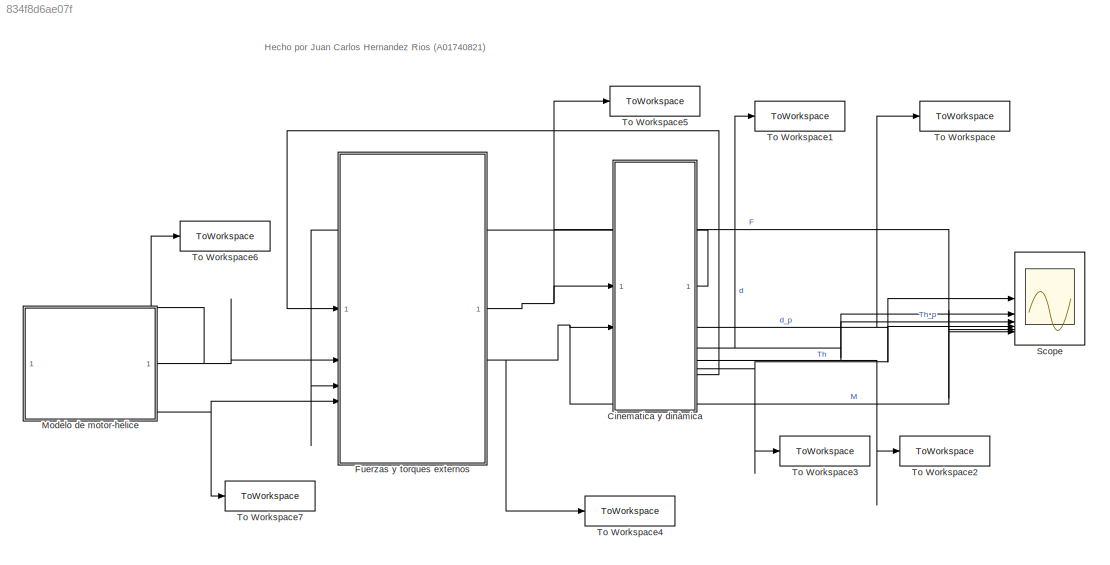
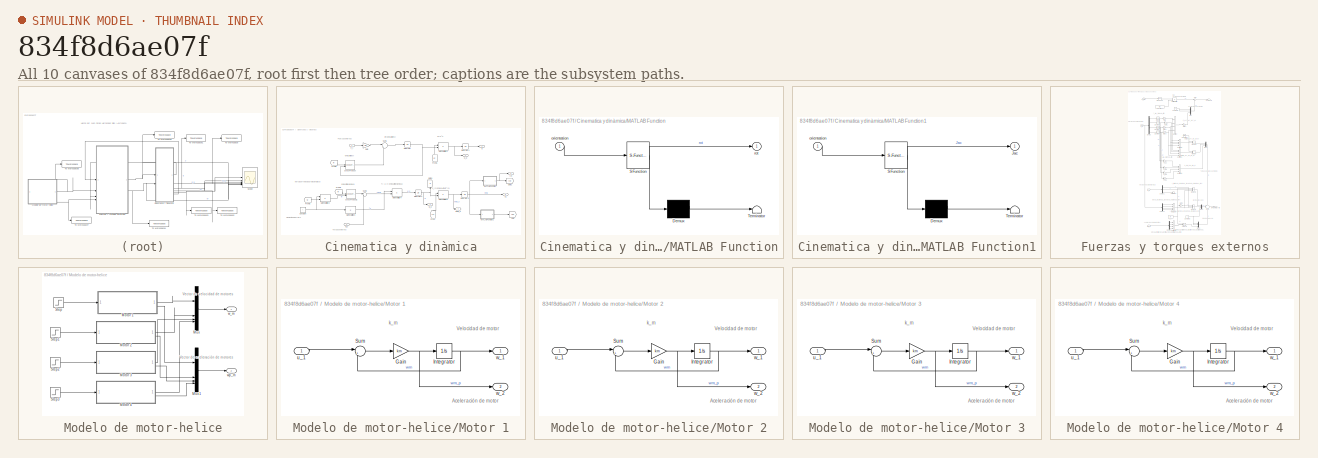
[diagram: thumbnail index - all 10 canvases of the model, root first then tree order]
MODEL slx_834f8d6ae07f
KIND model
CONFIG AbsTol = 1e-9
CONFIG EnableMultiTasking = off
CONFIG FixedStep = auto
CONFIG MaxStep = auto
CONFIG MinStep = auto
CONFIG RelTol = 1e-6
CONFIG SampleTimeConstraint = Unconstrained
CONFIG SolverName = VariableStepAuto
CONFIG StartTime = 0.0
CONFIG StopTime = t
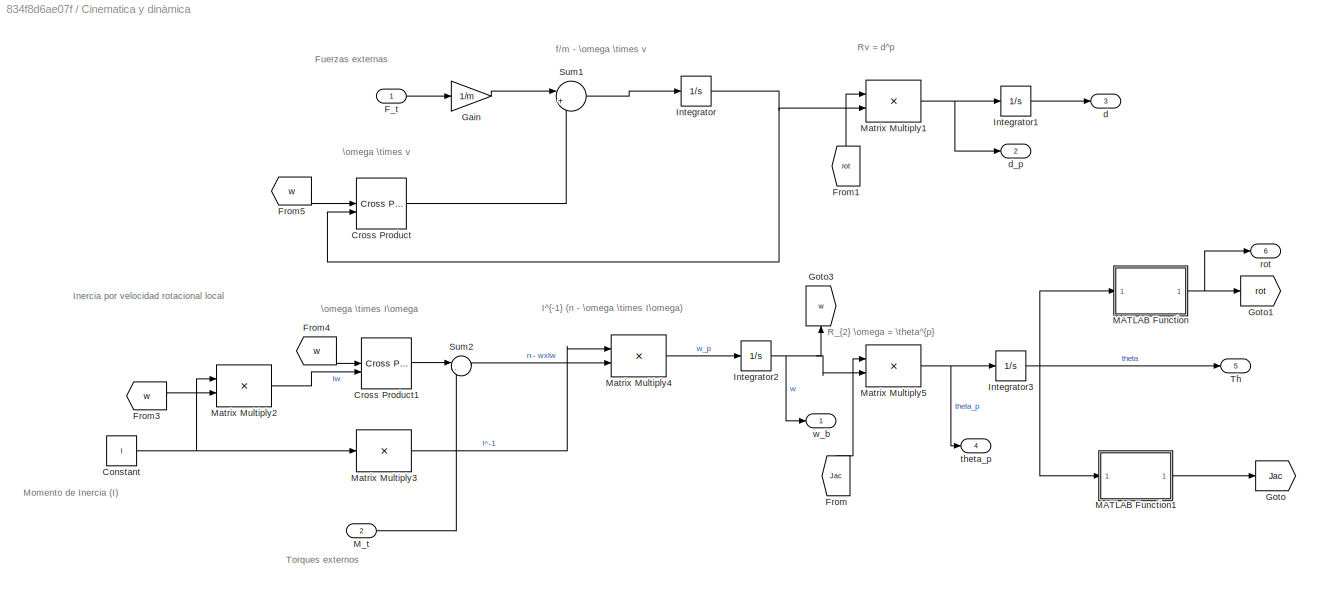
BLOCK [SubSystem] Cinematica y dinàmica
BLOCK [Constant] Cinematica y dinàmica/Constant
  Value = I
  VectorParams1D = off
BLOCK [Reference] Cinematica y dinàmica/Cross Product  REF=matrix_library/Cross Product
  LibrarySourceBlock = simulink/Matrix\nOperations/Cross Product
  SourceBlock = matrix_library/Cross Product
  SourceType = CrossProduct
BLOCK [Reference] Cinematica y dinàmica/Cross Product1  REF=matrix_library/Cross Product
  LibrarySourceBlock = simulink/Matrix\nOperations/Cross Product
  SourceBlock = matrix_library/Cross Product
  SourceType = CrossProduct
BLOCK [Inport] Cinematica y dinàmica/F_t
BLOCK [From] Cinematica y dinàmica/From
  GotoTag = Jac
  NameLocation = right
BLOCK [From] Cinematica y dinàmica/From1
  GotoTag = rot
  NameLocation = right
BLOCK [From] Cinematica y dinàmica/From3
  GotoTag = w
BLOCK [From] Cinematica y dinàmica/From4
  GotoTag = w
BLOCK [From] Cinematica y dinàmica/From5
  GotoTag = w
BLOCK [Gain] Cinematica y dinàmica/Gain
  Gain = 1/m
BLOCK [Goto] Cinematica y dinàmica/Goto
  GotoTag = Jac
BLOCK [Goto] Cinematica y dinàmica/Goto1
  GotoTag = rot
BLOCK [Goto] Cinematica y dinàmica/Goto3
  GotoTag = w
  NameLocation = right
BLOCK [Integrator] Cinematica y dinàmica/Integrator
  InitialCondition = v0
BLOCK [Integrator] Cinematica y dinàmica/Integrator1
  InitialCondition = d0
BLOCK [Integrator] Cinematica y dinàmica/Integrator2
  InitialCondition = w0
BLOCK [Integrator] Cinematica y dinàmica/Integrator3
  InitialCondition = theta0
BLOCK [SubSystem] Cinematica y dinàmica/MATLAB Function
  ErrorFcn = Stateflow.Translate.translate
  LibrarySourceBlock = simulink/User-Defined\nFunctions/MATLAB Function
  PermitHierarchicalResolution = ExplicitOnly
  SFBlockType = MATLAB Function
  TreatAsAtomicUnit = on
BLOCK [Demux] Cinematica y dinàmica/MATLAB Function/ Demux 
  Outputs = 1
BLOCK [S-Function] Cinematica y dinàmica/MATLAB Function/ SFunction 
  EnableBusSupport = on
  FunctionName = sf_sfun
  PortCounts = [1 2]
  SFcnIsStateOwnerBlock = off
  SFunctionDeploymentMode = off
  Tag = Stateflow S-Function 2
BLOCK [Terminator] Cinematica y dinàmica/MATLAB Function/ Terminator 
BLOCK [Inport] Cinematica y dinàmica/MATLAB Function/orientation
BLOCK [Outport] Cinematica y dinàmica/MATLAB Function/rot
BLOCK [SubSystem] Cinematica y dinàmica/MATLAB Function1
  ErrorFcn = Stateflow.Translate.translate
  LibrarySourceBlock = simulink/User-Defined\nFunctions/MATLAB Function
  PermitHierarchicalResolution = ExplicitOnly
  SFBlockType = MATLAB Function
  TreatAsAtomicUnit = on
BLOCK [Demux] Cinematica y dinàmica/MATLAB Function1/ Demux 
  Outputs = 1
BLOCK [S-Function] Cinematica y dinàmica/MATLAB Function1/ SFunction 
  EnableBusSupport = on
  FunctionName = sf_sfun
  PortCounts = [1 2]
  SFcnIsStateOwnerBlock = off
  SFunctionDeploymentMode = off
  Tag = Stateflow S-Function 1
BLOCK [Terminator] Cinematica y dinàmica/MATLAB Function1/ Terminator 
BLOCK [Outport] Cinematica y dinàmica/MATLAB Function1/Jac
BLOCK [Inport] Cinematica y dinàmica/MATLAB Function1/orientation
BLOCK [Inport] Cinematica y dinàmica/M_t
  Port = 2
BLOCK [Product] Cinematica y dinàmica/Matrix Multiply1
  Multiplication = Matrix(*)
BLOCK [Product] Cinematica y dinàmica/Matrix Multiply2
  Multiplication = Matrix(*)
BLOCK [Product] Cinematica y dinàmica/Matrix Multiply3
  Inputs = /
  Multiplication = Matrix(*)
BLOCK [Product] Cinematica y dinàmica/Matrix Multiply4
  Multiplication = Matrix(*)
BLOCK [Product] Cinematica y dinàmica/Matrix Multiply5
  Multiplication = Matrix(*)
BLOCK [Sum] Cinematica y dinàmica/Sum1
  Inputs = |+-
BLOCK [Sum] Cinematica y dinàmica/Sum2
  Inputs = |-+
BLOCK [Outport] Cinematica y dinàmica/Th
  Port = 5
BLOCK [Outport] Cinematica y dinàmica/d
  Port = 3
BLOCK [Outport] Cinematica y dinàmica/d_p
  Port = 2
BLOCK [Outport] Cinematica y dinàmica/rot
  Port = 6
BLOCK [Outport] Cinematica y dinàmica/theta_p
  Port = 4
BLOCK [Outport] Cinematica y dinàmica/w_b
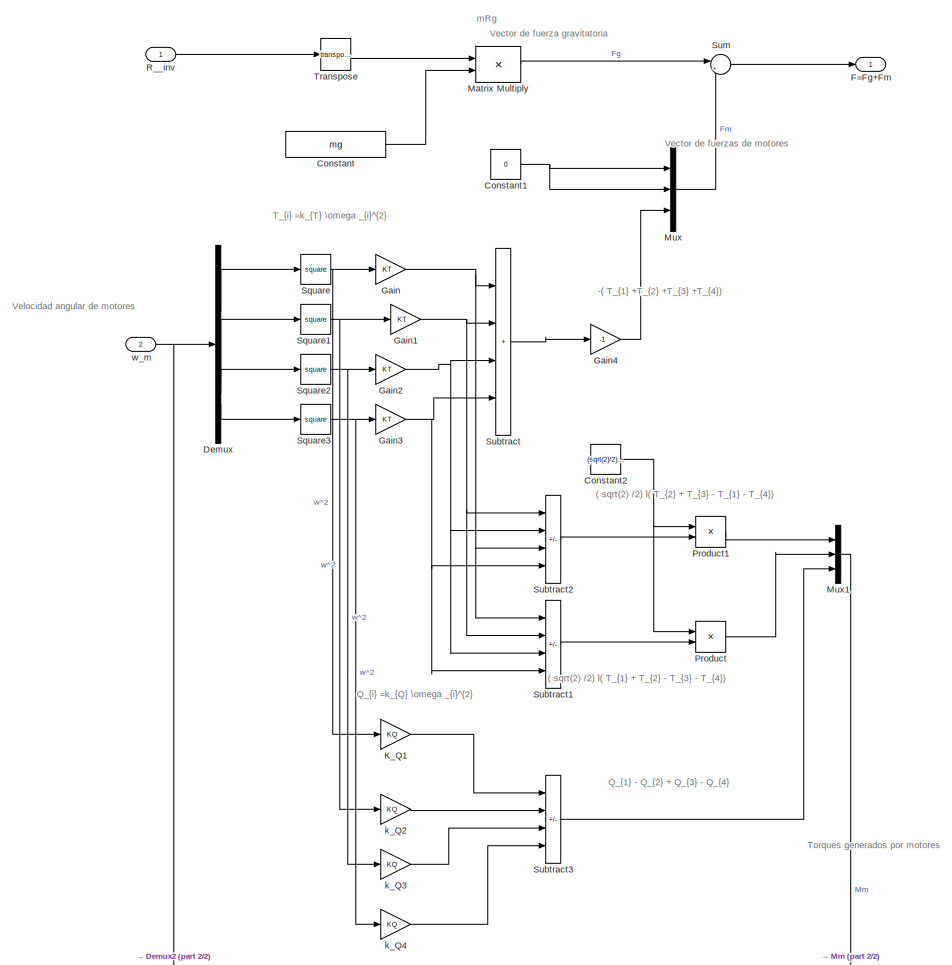
[diagram: Fuerzas y torques externos - part 1/2, full width, top band]
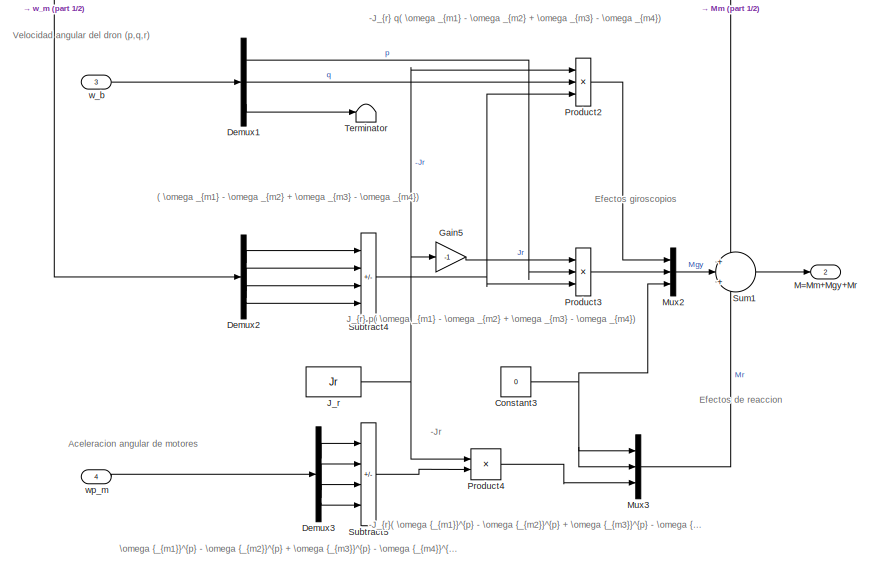
[diagram: Fuerzas y torques externos - part 2/2, full width, bottom band]
BLOCK [SubSystem] Fuerzas y torques externos
BLOCK [Constant] Fuerzas y torques externos/Constant
  Value = mg
BLOCK [Constant] Fuerzas y torques externos/Constant1
  Value = 0
BLOCK [Constant] Fuerzas y torques externos/Constant2
  Value = (sqrt(2)/2)*l
BLOCK [Constant] Fuerzas y torques externos/Constant3
  Value = 0
BLOCK [Demux] Fuerzas y torques externos/Demux
BLOCK [Demux] Fuerzas y torques externos/Demux1
  Outputs = 3
BLOCK [Demux] Fuerzas y torques externos/Demux2
BLOCK [Demux] Fuerzas y torques externos/Demux3
BLOCK [Outport] Fuerzas y torques externos/F=Fg+Fm
BLOCK [Gain] Fuerzas y torques externos/Gain
  Gain = KT
BLOCK [Gain] Fuerzas y torques externos/Gain1
  Gain = KT
BLOCK [Gain] Fuerzas y torques externos/Gain2
  Gain = KT
BLOCK [Gain] Fuerzas y torques externos/Gain3
  Gain = KT
BLOCK [Gain] Fuerzas y torques externos/Gain4
  Gain = -1
BLOCK [Gain] Fuerzas y torques externos/Gain5
  Gain = -1
BLOCK [Constant] Fuerzas y torques externos/J_r
  Value = Jr
BLOCK [Gain] Fuerzas y torques externos/K_Q1
  Gain = KQ
BLOCK [Outport] Fuerzas y torques externos/M=Mm+Mgy+Mr
  Port = 2
BLOCK [Product] Fuerzas y torques externos/Matrix Multiply
  Multiplication = Matrix(*)
BLOCK [Mux] Fuerzas y torques externos/Mux
  DisplayOption = bar
  Inputs = 3
BLOCK [Mux] Fuerzas y torques externos/Mux1
  DisplayOption = bar
  Inputs = 3
BLOCK [Mux] Fuerzas y torques externos/Mux2
  DisplayOption = bar
  Inputs = 3
BLOCK [Mux] Fuerzas y torques externos/Mux3
  DisplayOption = bar
  Inputs = 3
BLOCK [Product] Fuerzas y torques externos/Product
BLOCK [Product] Fuerzas y torques externos/Product1
BLOCK [Product] Fuerzas y torques externos/Product2
  Inputs = 3
BLOCK [Product] Fuerzas y torques externos/Product3
  Inputs = 3
BLOCK [Product] Fuerzas y torques externos/Product4
BLOCK [Inport] Fuerzas y torques externos/R__inv
BLOCK [Math] Fuerzas y torques externos/Square
  Operator = square
BLOCK [Math] Fuerzas y torques externos/Square1
  Operator = square
BLOCK [Math] Fuerzas y torques externos/Square2
  Operator = square
BLOCK [Math] Fuerzas y torques externos/Square3
  Operator = square
BLOCK [Sum] Fuerzas y torques externos/Subtract
  IconShape = rectangular
  Inputs = ++++
BLOCK [Sum] Fuerzas y torques externos/Subtract1
  IconShape = rectangular
  Inputs = ++--
BLOCK [Sum] Fuerzas y torques externos/Subtract2
  IconShape = rectangular
  Inputs = ++--
BLOCK [Sum] Fuerzas y torques externos/Subtract3
  IconShape = rectangular
  Inputs = +-+-
BLOCK [Sum] Fuerzas y torques externos/Subtract4
  IconShape = rectangular
  Inputs = +-+-
BLOCK [Sum] Fuerzas y torques externos/Subtract5
  IconShape = rectangular
  Inputs = +-+-
BLOCK [Sum] Fuerzas y torques externos/Sum
  Inputs = |++
BLOCK [Sum] Fuerzas y torques externos/Sum1
  Inputs = +|+|+
BLOCK [Terminator] Fuerzas y torques externos/Terminator
BLOCK [Math] Fuerzas y torques externos/Transpose
  Operator = transpose
BLOCK [Gain] Fuerzas y torques externos/k_Q2
  Gain = KQ
BLOCK [Gain] Fuerzas y torques externos/k_Q3
  Gain = KQ
BLOCK [Gain] Fuerzas y torques externos/k_Q4
  Gain = KQ
BLOCK [Inport] Fuerzas y torques externos/w_b
  Port = 3
BLOCK [Inport] Fuerzas y torques externos/w_m
  Port = 2
BLOCK [Inport] Fuerzas y torques externos/wp_m
  Port = 4
BLOCK [SubSystem] Modelo de motor-helice
BLOCK [SubSystem] Modelo de motor-helice/Motor 1
BLOCK [Gain] Modelo de motor-helice/Motor 1/Gain
  Gain = km
BLOCK [Integrator] Modelo de motor-helice/Motor 1/Integrator
BLOCK [Sum] Modelo de motor-helice/Motor 1/Sum
  Inputs = |+-
BLOCK [Inport] Modelo de motor-helice/Motor 1/u_1
BLOCK [Outport] Modelo de motor-helice/Motor 1/w_1
BLOCK [Outport] Modelo de motor-helice/Motor 1/w_2
  Port = 2
BLOCK [SubSystem] Modelo de motor-helice/Motor 2
BLOCK [Gain] Modelo de motor-helice/Motor 2/Gain
  Gain = km
BLOCK [Integrator] Modelo de motor-helice/Motor 2/Integrator
BLOCK [Sum] Modelo de motor-helice/Motor 2/Sum
  Inputs = |+-
BLOCK [Inport] Modelo de motor-helice/Motor 2/u_1
BLOCK [Outport] Modelo de motor-helice/Motor 2/w_1
BLOCK [Outport] Modelo de motor-helice/Motor 2/w_2
  Port = 2
BLOCK [SubSystem] Modelo de motor-helice/Motor 3
BLOCK [Gain] Modelo de motor-helice/Motor 3/Gain
  Gain = km
BLOCK [Integrator] Modelo de motor-helice/Motor 3/Integrator
BLOCK [Sum] Modelo de motor-helice/Motor 3/Sum
  Inputs = |+-
BLOCK [Inport] Modelo de motor-helice/Motor 3/u_1
BLOCK [Outport] Modelo de motor-helice/Motor 3/w_1
BLOCK [Outport] Modelo de motor-helice/Motor 3/w_2
  Port = 2
BLOCK [SubSystem] Modelo de motor-helice/Motor 4
BLOCK [Gain] Modelo de motor-helice/Motor 4/Gain
  Gain = km
BLOCK [Integrator] Modelo de motor-helice/Motor 4/Integrator
BLOCK [Sum] Modelo de motor-helice/Motor 4/Sum
  Inputs = |+-
BLOCK [Inport] Modelo de motor-helice/Motor 4/u_1
BLOCK [Outport] Modelo de motor-helice/Motor 4/w_1
BLOCK [Outport] Modelo de motor-helice/Motor 4/w_2
  Port = 2
BLOCK [Mux] Modelo de motor-helice/Mux
  DisplayOption = bar
BLOCK [Mux] Modelo de motor-helice/Mux1
  DisplayOption = bar
BLOCK [Step] Modelo de motor-helice/Step
  After = u1
  SampleTime = 0.1
  Time = 0.1
  VectorParams1D = off
BLOCK [Step] Modelo de motor-helice/Step1
  After = u2
  SampleTime = 0.1
  Time = 0.1
  VectorParams1D = off
BLOCK [Step] Modelo de motor-helice/Step2
  After = u3
  SampleTime = 0.1
  Time = 0.1
  VectorParams1D = off
BLOCK [Step] Modelo de motor-helice/Step3
  After = u4
  SampleTime = 0.1
  Time = 0.1
  VectorParams1D = off
BLOCK [Outport] Modelo de motor-helice/w_m
BLOCK [Outport] Modelo de motor-helice/wp_m
  Port = 2
BLOCK [Scope] Scope
  Floating = off
  NumInputPorts = 6
  ScopeSpecificationString = Simulink.scopes.TimeScopeBlockCfg('CurrentConfiguration', extmgr.ConfigurationSet(extmgr.Configuration('Core','General UI',true),extmgr.Configuration('Core','Source UI',true),extmgr.Configuration('Sources','WiredSimulink',true),extmgr.Configuration('Visuals','Time Domain',true,'SerializedDisplays',{struct('MinYLimReal','-965.34304','MaxYLimReal','108.35262','YLabelReal','','MinYLimMag',' 0.00000',...<+5720ch>
BLOCK [ToWorkspace] To Workspace
  FixptAsFi = on
  MaxDataPoints = inf
  SampleTime = -1
  SaveFormat = Timeseries
  VariableName = d_p
BLOCK [ToWorkspace] To Workspace1
  FixptAsFi = on
  MaxDataPoints = inf
  SampleTime = -1
  SaveFormat = Timeseries
  VariableName = d
BLOCK [ToWorkspace] To Workspace2
  FixptAsFi = on
  MaxDataPoints = inf
  SampleTime = -1
  SaveFormat = Timeseries
  VariableName = Th_p
BLOCK [ToWorkspace] To Workspace3
  FixptAsFi = on
  MaxDataPoints = inf
  SampleTime = -1
  SaveFormat = Timeseries
  VariableName = Th
BLOCK [ToWorkspace] To Workspace4
  FixptAsFi = on
  MaxDataPoints = inf
  SampleTime = -1
  SaveFormat = Timeseries
  VariableName = M
BLOCK [ToWorkspace] To Workspace5
  FixptAsFi = on
  MaxDataPoints = inf
  SampleTime = -1
  SaveFormat = Timeseries
  VariableName = F
BLOCK [ToWorkspace] To Workspace6
  FixptAsFi = on
  MaxDataPoints = inf
  SampleTime = -1
  SaveFormat = Timeseries
  VariableName = w_m
BLOCK [ToWorkspace] To Workspace7
  FixptAsFi = on
  MaxDataPoints = inf
  SampleTime = -1
  SaveFormat = Timeseries
  VariableName = wp_m
ANNOTATION (root): Hecho por Juan Carlos Hernandez Rios (A01740821)
ANNOTATION Cinematica y dinàmica: Fuerzas externas
ANNOTATION Cinematica y dinàmica: I^{-1} (n - \omega \times I\omega)
ANNOTATION Cinematica y dinàmica: Inercia por velocidad rotacional local
ANNOTATION Cinematica y dinàmica: Momento de Inercia (I)
ANNOTATION Cinematica y dinàmica: R_{2} \omega = \theta^{p}
ANNOTATION Cinematica y dinàmica: Rv = d^p
ANNOTATION Cinematica y dinàmica: Torques externos
ANNOTATION Cinematica y dinàmica: \omega \times I\omega
ANNOTATION Cinematica y dinàmica: \omega \times v
ANNOTATION Cinematica y dinàmica: f/m - \omega \times v
ANNOTATION Fuerzas y torques externos: ( \omega _{m1} - \omega _{m2} + \omega _{m3} - \omega _{m4})
ANNOTATION Fuerzas y torques externos: ( sqrt(2) /2) l( T_{1} + T_{2} - T_{3} - T_{4})
ANNOTATION Fuerzas y torques externos: ( sqrt(2) /2) l( T_{2} + T_{3} - T_{1} - T_{4})
ANNOTATION Fuerzas y torques externos: -( T_{1} +T_{2} +T_{3} +T_{4})
ANNOTATION Fuerzas y torques externos: -J_{r} q( \omega _{m1} - \omega _{m2} + \omega _{m3} - \omega _{m4})
ANNOTATION Fuerzas y torques externos: -J_{r}( \omega {_{m1}}^{p} - \omega {_{m2}}^{p} + \omega {_{m3}}^{p} - \omega {_{m4}}^{p})
ANNOTATION Fuerzas y torques externos: -Jr
ANNOTATION Fuerzas y torques externos: Aceleracion angular de motores
ANNOTATION Fuerzas y torques externos: Efectos de reaccion
ANNOTATION Fuerzas y torques externos: Efectos giroscopios
ANNOTATION Fuerzas y torques externos: J_{r} p( \omega _{m1} - \omega _{m2} + \omega _{m3} - \omega _{m4})
ANNOTATION Fuerzas y torques externos: Q_{1} - Q_{2} + Q_{3} - Q_{4}
ANNOTATION Fuerzas y torques externos: Q_{i} =k_{Q} \omega _{i}^{2}
ANNOTATION Fuerzas y torques externos: T_{i} =k_{T} \omega _{i}^{2}
ANNOTATION Fuerzas y torques externos: Torques generados por motores
ANNOTATION Fuerzas y torques externos: Vector de fuerza gravitatoria
ANNOTATION Fuerzas y torques externos: Vector de fuerzas de motores
ANNOTATION Fuerzas y torques externos: Velocidad angular de motores
ANNOTATION Fuerzas y torques externos: Velocidad angular del dron (p,q,r)
ANNOTATION Fuerzas y torques externos: \omega {_{m1}}^{p} - \omega {_{m2}}^{p} + \omega {_{m3}}^{p} - \omega {_{m4}}^{p}
ANNOTATION Fuerzas y torques externos: mRg
ANNOTATION Modelo de motor-helice: Vector de aceleración de motores
ANNOTATION Modelo de motor-helice: Vector de velocidad de motores
ANNOTATION Modelo de motor-helice/Motor 1: Aceleración de motor
ANNOTATION Modelo de motor-helice/Motor 1: Velocidad de motor
ANNOTATION Modelo de motor-helice/Motor 1: k_m
ANNOTATION Modelo de motor-helice/Motor 2: Aceleración de motor
ANNOTATION Modelo de motor-helice/Motor 2: Velocidad de motor
ANNOTATION Modelo de motor-helice/Motor 2: k_m
ANNOTATION Modelo de motor-helice/Motor 3: Aceleración de motor
ANNOTATION Modelo de motor-helice/Motor 3: Velocidad de motor
ANNOTATION Modelo de motor-helice/Motor 3: k_m
ANNOTATION Modelo de motor-helice/Motor 4: Aceleración de motor
ANNOTATION Modelo de motor-helice/Motor 4: Velocidad de motor
ANNOTATION Modelo de motor-helice/Motor 4: k_m
NET Cinematica y dinàmica/Constant:1 -> Cinematica y dinàmica/Matrix Multiply2:1, Cinematica y dinàmica/Matrix Multiply3:1
LINE Cinematica y dinàmica/Cross Product1:1 -> Cinematica y dinàmica/Sum2:1
LINE Cinematica y dinàmica/Cross Product:1 -> Cinematica y dinàmica/Sum1:2
LINE Cinematica y dinàmica/F_t:1 -> Cinematica y dinàmica/Gain:1
LINE Cinematica y dinàmica/From1:1 -> Cinematica y dinàmica/Matrix Multiply1:1
LINE Cinematica y dinàmica/From3:1 -> Cinematica y dinàmica/Matrix Multiply2:2
LINE Cinematica y dinàmica/From4:1 -> Cinematica y dinàmica/Cross Product1:1
LINE Cinematica y dinàmica/From5:1 -> Cinematica y dinàmica/Cross Product:1
LINE Cinematica y dinàmica/From:1 -> Cinematica y dinàmica/Matrix Multiply5:1
LINE Cinematica y dinàmica/Gain:1 -> Cinematica y dinàmica/Sum1:1
LINE Cinematica y dinàmica/Integrator1:1 -> Cinematica y dinàmica/d:1
NET Cinematica y dinàmica/Integrator2:1 -> Cinematica y dinàmica/Goto3:1, Cinematica y dinàmica/Matrix Multiply5:2, Cinematica y dinàmica/w_b:1
NET Cinematica y dinàmica/Integrator3:1 -> Cinematica y dinàmica/MATLAB Function1:1, Cinematica y dinàmica/MATLAB Function:1, Cinematica y dinàmica/Th:1
NET Cinematica y dinàmica/Integrator:1 -> Cinematica y dinàmica/Cross Product:2, Cinematica y dinàmica/Matrix Multiply1:2
LINE Cinematica y dinàmica/MATLAB Function1:1 -> Cinematica y dinàmica/Goto:1
NET Cinematica y dinàmica/MATLAB Function:1 -> Cinematica y dinàmica/Goto1:1, Cinematica y dinàmica/rot:1
LINE Cinematica y dinàmica/M_t:1 -> Cinematica y dinàmica/Sum2:2
NET Cinematica y dinàmica/Matrix Multiply1:1 -> Cinematica y dinàmica/Integrator1:1, Cinematica y dinàmica/d_p:1
LINE Cinematica y dinàmica/Matrix Multiply2:1 -> Cinematica y dinàmica/Cross Product1:2
LINE Cinematica y dinàmica/Matrix Multiply3:1 -> Cinematica y dinàmica/Matrix Multiply4:1
LINE Cinematica y dinàmica/Matrix Multiply4:1 -> Cinematica y dinàmica/Integrator2:1
NET Cinematica y dinàmica/Matrix Multiply5:1 -> Cinematica y dinàmica/Integrator3:1, Cinematica y dinàmica/theta_p:1
LINE Cinematica y dinàmica/Sum1:1 -> Cinematica y dinàmica/Integrator:1
LINE Cinematica y dinàmica/Sum2:1 -> Cinematica y dinàmica/Matrix Multiply4:2
LINE Cinematica y dinàmica:1 -> Fuerzas y torques externos:3
NET Cinematica y dinàmica:2 -> Scope:1, To Workspace:1
NET Cinematica y dinàmica:3 -> Scope:2, To Workspace1:1
NET Cinematica y dinàmica:4 -> Scope:3, To Workspace2:1
NET Cinematica y dinàmica:5 -> Scope:4, To Workspace3:1
LINE Cinematica y dinàmica:6 -> Fuerzas y torques externos:1
NET Fuerzas y torques externos/Constant1:1 -> Fuerzas y torques externos/Mux:1, Fuerzas y torques externos/Mux:2
NET Fuerzas y torques externos/Constant2:1 -> Fuerzas y torques externos/Product1:1, Fuerzas y torques externos/Product:1
NET Fuerzas y torques externos/Constant3:1 -> Fuerzas y torques externos/Mux2:3, Fuerzas y torques externos/Mux3:1, Fuerzas y torques externos/Mux3:2
LINE Fuerzas y torques externos/Constant:1 -> Fuerzas y torques externos/Matrix Multiply:2
LINE Fuerzas y torques externos/Demux1:1 -> Fuerzas y torques externos/Product3:2
LINE Fuerzas y torques externos/Demux1:2 -> Fuerzas y torques externos/Product2:2
LINE Fuerzas y torques externos/Demux1:3 -> Fuerzas y torques externos/Terminator:1
LINE Fuerzas y torques externos/Demux2:1 -> Fuerzas y torques externos/Subtract4:1
LINE Fuerzas y torques externos/Demux2:2 -> Fuerzas y torques externos/Subtract4:2
LINE Fuerzas y torques externos/Demux2:3 -> Fuerzas y torques externos/Subtract4:3
LINE Fuerzas y torques externos/Demux2:4 -> Fuerzas y torques externos/Subtract4:4
LINE Fuerzas y torques externos/Demux3:1 -> Fuerzas y torques externos/Subtract5:1
LINE Fuerzas y torques externos/Demux3:2 -> Fuerzas y torques externos/Subtract5:2
LINE Fuerzas y torques externos/Demux3:3 -> Fuerzas y torques externos/Subtract5:3
LINE Fuerzas y torques externos/Demux3:4 -> Fuerzas y torques externos/Subtract5:4
LINE Fuerzas y torques externos/Demux:1 -> Fuerzas y torques externos/Square:1
LINE Fuerzas y torques externos/Demux:2 -> Fuerzas y torques externos/Square1:1
LINE Fuerzas y torques externos/Demux:3 -> Fuerzas y torques externos/Square2:1
LINE Fuerzas y torques externos/Demux:4 -> Fuerzas y torques externos/Square3:1
NET Fuerzas y torques externos/Gain1:1 -> Fuerzas y torques externos/Subtract1:2, Fuerzas y torques externos/Subtract2:1, Fuerzas y torques externos/Subtract:2
NET Fuerzas y torques externos/Gain2:1 -> Fuerzas y torques externos/Subtract1:3, Fuerzas y torques externos/Subtract2:2, Fuerzas y torques externos/Subtract:3
NET Fuerzas y torques externos/Gain3:1 -> Fuerzas y torques externos/Subtract1:4, Fuerzas y torques externos/Subtract2:4, Fuerzas y torques externos/Subtract:4
LINE Fuerzas y torques externos/Gain4:1 -> Fuerzas y torques externos/Mux:3
LINE Fuerzas y torques externos/Gain5:1 -> Fuerzas y torques externos/Product3:1
NET Fuerzas y torques externos/Gain:1 -> Fuerzas y torques externos/Subtract1:1, Fuerzas y torques externos/Subtract2:3, Fuerzas y torques externos/Subtract:1
NET Fuerzas y torques externos/J_r:1 -> Fuerzas y torques externos/Gain5:1, Fuerzas y torques externos/Product2:1, Fuerzas y torques externos/Product4:1
LINE Fuerzas y torques externos/K_Q1:1 -> Fuerzas y torques externos/Subtract3:1
LINE Fuerzas y torques externos/Matrix Multiply:1 -> Fuerzas y torques externos/Sum:1
LINE Fuerzas y torques externos/Mux1:1 -> Fuerzas y torques externos/Sum1:1
LINE Fuerzas y torques externos/Mux2:1 -> Fuerzas y torques externos/Sum1:2
LINE Fuerzas y torques externos/Mux3:1 -> Fuerzas y torques externos/Sum1:3
LINE Fuerzas y torques externos/Mux:1 -> Fuerzas y torques externos/Sum:2
LINE Fuerzas y torques externos/Product1:1 -> Fuerzas y torques externos/Mux1:1
LINE Fuerzas y torques externos/Product2:1 -> Fuerzas y torques externos/Mux2:1
LINE Fuerzas y torques externos/Product3:1 -> Fuerzas y torques externos/Mux2:2
LINE Fuerzas y torques externos/Product4:1 -> Fuerzas y torques externos/Mux3:3
LINE Fuerzas y torques externos/Product:1 -> Fuerzas y torques externos/Mux1:2
LINE Fuerzas y torques externos/R__inv:1 -> Fuerzas y torques externos/Transpose:1
NET Fuerzas y torques externos/Square1:1 -> Fuerzas y torques externos/Gain1:1, Fuerzas y torques externos/k_Q2:1
NET Fuerzas y torques externos/Square2:1 -> Fuerzas y torques externos/Gain2:1, Fuerzas y torques externos/k_Q3:1
NET Fuerzas y torques externos/Square3:1 -> Fuerzas y torques externos/Gain3:1, Fuerzas y torques externos/k_Q4:1
NET Fuerzas y torques externos/Square:1 -> Fuerzas y torques externos/Gain:1, Fuerzas y torques externos/K_Q1:1
LINE Fuerzas y torques externos/Subtract1:1 -> Fuerzas y torques externos/Product:2
LINE Fuerzas y torques externos/Subtract2:1 -> Fuerzas y torques externos/Product1:2
LINE Fuerzas y torques externos/Subtract3:1 -> Fuerzas y torques externos/Mux1:3
NET Fuerzas y torques externos/Subtract4:1 -> Fuerzas y torques externos/Product2:3, Fuerzas y torques externos/Product3:3
LINE Fuerzas y torques externos/Subtract5:1 -> Fuerzas y torques externos/Product4:2
LINE Fuerzas y torques externos/Subtract:1 -> Fuerzas y torques externos/Gain4:1
LINE Fuerzas y torques externos/Sum1:1 -> Fuerzas y torques externos/M=Mm+Mgy+Mr:1
LINE Fuerzas y torques externos/Sum:1 -> Fuerzas y torques externos/F=Fg+Fm:1
LINE Fuerzas y torques externos/Transpose:1 -> Fuerzas y torques externos/Matrix Multiply:1
LINE Fuerzas y torques externos/k_Q2:1 -> Fuerzas y torques externos/Subtract3:2
LINE Fuerzas y torques externos/k_Q3:1 -> Fuerzas y torques externos/Subtract3:3
LINE Fuerzas y torques externos/k_Q4:1 -> Fuerzas y torques externos/Subtract3:4
LINE Fuerzas y torques externos/w_b:1 -> Fuerzas y torques externos/Demux1:1
NET Fuerzas y torques externos/w_m:1 -> Fuerzas y torques externos/Demux2:1, Fuerzas y torques externos/Demux:1
LINE Fuerzas y torques externos/wp_m:1 -> Fuerzas y torques externos/Demux3:1
NET Fuerzas y torques externos:1 -> Cinematica y dinàmica:1, Scope:5, To Workspace5:1
NET Fuerzas y torques externos:2 -> Cinematica y dinàmica:2, Scope:6, To Workspace4:1
NET Modelo de motor-helice/Motor 1/Gain:1 -> Modelo de motor-helice/Motor 1/Integrator:1, Modelo de motor-helice/Motor 1/w_2:1
NET Modelo de motor-helice/Motor 1/Integrator:1 -> Modelo de motor-helice/Motor 1/Sum:2, Modelo de motor-helice/Motor 1/w_1:1
LINE Modelo de motor-helice/Motor 1/Sum:1 -> Modelo de motor-helice/Motor 1/Gain:1
LINE Modelo de motor-helice/Motor 1/u_1:1 -> Modelo de motor-helice/Motor 1/Sum:1
LINE Modelo de motor-helice/Motor 1:1 -> Modelo de motor-helice/Mux:1
LINE Modelo de motor-helice/Motor 1:2 -> Modelo de motor-helice/Mux1:1
NET Modelo de motor-helice/Motor 2/Gain:1 -> Modelo de motor-helice/Motor 2/Integrator:1, Modelo de motor-helice/Motor 2/w_2:1
NET Modelo de motor-helice/Motor 2/Integrator:1 -> Modelo de motor-helice/Motor 2/Sum:2, Modelo de motor-helice/Motor 2/w_1:1
LINE Modelo de motor-helice/Motor 2/Sum:1 -> Modelo de motor-helice/Motor 2/Gain:1
LINE Modelo de motor-helice/Motor 2/u_1:1 -> Modelo de motor-helice/Motor 2/Sum:1
LINE Modelo de motor-helice/Motor 2:1 -> Modelo de motor-helice/Mux:2
LINE Modelo de motor-helice/Motor 2:2 -> Modelo de motor-helice/Mux1:2
NET Modelo de motor-helice/Motor 3/Gain:1 -> Modelo de motor-helice/Motor 3/Integrator:1, Modelo de motor-helice/Motor 3/w_2:1
NET Modelo de motor-helice/Motor 3/Integrator:1 -> Modelo de motor-helice/Motor 3/Sum:2, Modelo de motor-helice/Motor 3/w_1:1
LINE Modelo de motor-helice/Motor 3/Sum:1 -> Modelo de motor-helice/Motor 3/Gain:1
LINE Modelo de motor-helice/Motor 3/u_1:1 -> Modelo de motor-helice/Motor 3/Sum:1
LINE Modelo de motor-helice/Motor 3:1 -> Modelo de motor-helice/Mux:3
LINE Modelo de motor-helice/Motor 3:2 -> Modelo de motor-helice/Mux1:3
NET Modelo de motor-helice/Motor 4/Gain:1 -> Modelo de motor-helice/Motor 4/Integrator:1, Modelo de motor-helice/Motor 4/w_2:1
NET Modelo de motor-helice/Motor 4/Integrator:1 -> Modelo de motor-helice/Motor 4/Sum:2, Modelo de motor-helice/Motor 4/w_1:1
LINE Modelo de motor-helice/Motor 4/Sum:1 -> Modelo de motor-helice/Motor 4/Gain:1
LINE Modelo de motor-helice/Motor 4/u_1:1 -> Modelo de motor-helice/Motor 4/Sum:1
LINE Modelo de motor-helice/Motor 4:1 -> Modelo de motor-helice/Mux:4
LINE Modelo de motor-helice/Motor 4:2 -> Modelo de motor-helice/Mux1:4
LINE Modelo de motor-helice/Mux1:1 -> Modelo de motor-helice/wp_m:1
LINE Modelo de motor-helice/Mux:1 -> Modelo de motor-helice/w_m:1
LINE Modelo de motor-helice/Step1:1 -> Modelo de motor-helice/Motor 2:1
LINE Modelo de motor-helice/Step2:1 -> Modelo de motor-helice/Motor 3:1
LINE Modelo de motor-helice/Step3:1 -> Modelo de motor-helice/Motor 4:1
LINE Modelo de motor-helice/Step:1 -> Modelo de motor-helice/Motor 1:1
NET Modelo de motor-helice:1 -> Fuerzas y torques externos:2, To Workspace6:1
NET Modelo de motor-helice:2 -> Fuerzas y torques externos:4, To Workspace7:1
note: NET lines group one-source signal fan-out (src -> all destinations, sorted); 1:1 wires keep LINE
CHART Cinematica y dinàmica/MATLAB Function states=1 transitions=1
  STATE_LABEL 'eML_blk_kernel()'
  STATE_LABEL 'SCRIPT:\nfunction rot = fcn(orientation)\n\nphi = orientation(1)\ntheta = orientation(2);\npsi = orientation(3);\n\nrot = [cos(theta)*cos(psi), cos(theta)*sin(psi), -sin(theta);\n       -cos(phi)*sin(psi)+sin(phi)*sin(theta)*cos(psi), cos(phi)*cos(psi)+sin(phi)*sin(theta)*sin(psi), sin(phi)*cos(theta);\n       sin(phi)*sin(psi)+cos(phi)*sin(theta)*cos(psi), -sin(phi)*cos(psi)+cos(phi)*sin(theta)*sin(psi), ...<+35ch>'
CHART Cinematica y dinàmica/MATLAB Function1 states=1 transitions=1
  STATE_LABEL 'eML_blk_kernel()'
  STATE_LABEL 'SCRIPT:\nfunction Jac = fcn(orientation)\n\nphi = orientation(1);\ntheta = orientation(2);\npsi = orientation(3);\n\nJac = [1, sin(phi)*tan(theta), cos(phi)*tan(theta);\n       0, cos(phi),            -sin(phi);\n       0, sin(phi)/cos(theta), cos(phi)/cos(theta)];\n'
CHART  states=0 transitions=0
CHART  states=0 transitions=0
